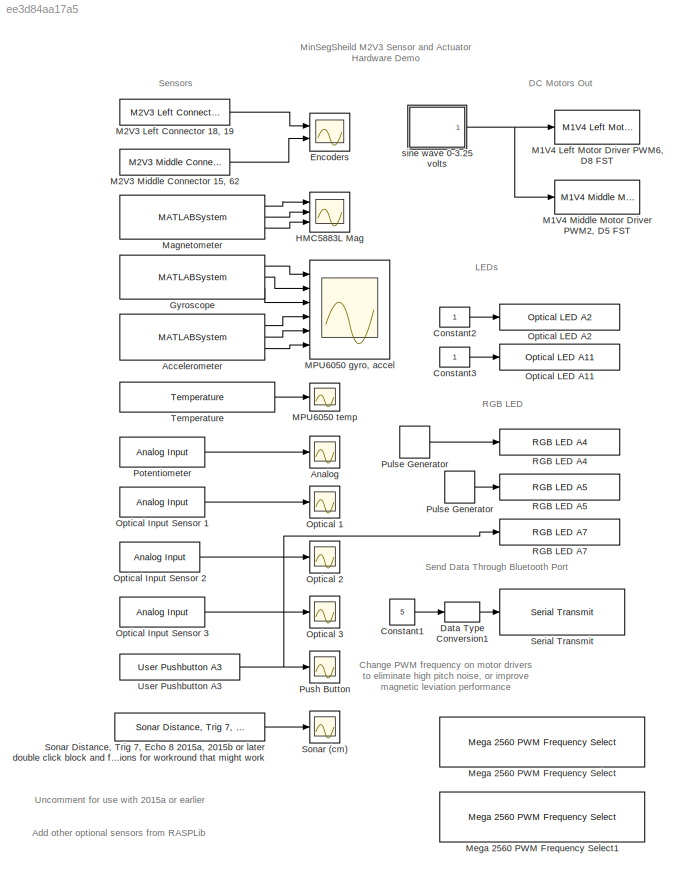
MODEL slx_ee3d84aa17a5
KIND model
CONFIG AbsTol = auto
CONFIG FixedStep = auto
CONFIG MaxStep = auto
CONFIG MinStep = auto
CONFIG RelTol = 1e-3
CONFIG SampleTimeConstraint = Unconstrained
CONFIG Solver = ode45
CONFIG SolverMode = Auto
CONFIG SolverName = ode45
CONFIG StartTime = 0.0
CONFIG StopTime = 10.0
BLOCK [MATLABSystem] Accelerometer
  MaskDisplay = disp('soMPU6050Accel');\nport_label('output',1,'xaccel');\nport_label('output',2,'yaccel');\nport_label('output',3,'zaccel');
  MaskType = soMPU6050Accel
  Ports = [0, 3]
  SimulateUsing = Code generation
  System = soMPU6050Accel
BLOCK [Scope] Analog
  DataFormat = StructureWithTime
  Floating = off
  NumInputPorts = 1
  Ports = [1]
  SampleTime = 0
  SaveName = ScopeData6
  TimeRange = 30
  YMax = 1000
  YMin = 0
BLOCK [Constant] Constant1
  SampleTime = -1
  Value = 5
BLOCK [Constant] Constant2
  SampleTime = -1
BLOCK [Constant] Constant3
  SampleTime = -1
BLOCK [DataTypeConversion] Data Type Conversion1
  OutDataTypeStr = uint8
  RndMeth = Floor
  SaturateOnIntegerOverflow = off
BLOCK [Scope] Encoders
  DataFormat = StructureWithTime
  Floating = off
  NumInputPorts = 2
  Ports = [2]
  SampleTime = 0
  TimeRange = 20
  YMax = 700~250
  YMin = -200~-25
BLOCK [MATLABSystem] Gyroscope
  DLPFmode = 0
  MaskDisplay = disp('soMPU6050Gyro');\nport_label('output',1,'xvel');\nport_label('output',2,'yvel');\nport_label('output',3,'zvel');
  MaskType = soMPU6050Gyro
  Ports = [0, 3]
  System = soMPU6050Gyro
BLOCK [Scope] HMC5883L Mag
  DataFormat = StructureWithTime
  Floating = off
  NumInputPorts = 3
  Ports = [3]
  SampleTime = 0
  SaveName = ScopeData7
  TimeRange = 10
  YMax = 175~30~200
  YMin = 100~-90~25
BLOCK [Reference] M1V4 Left Motor Driver PWM6, D8 FST  REF=MinSegLibrary_M2V3/M1V4 Left Motor Driver
PWM6, D8 FST
  Ports = [1]
  SourceBlock = MinSegLibrary_M2V3/M1V4 Left Motor Driver\nPWM6, D8 FST
  Vsupply = 3.25
BLOCK [Reference] M1V4 Middle Motor Driver PWM2, D5 FST  REF=MinSegLibrary_M2V3/M1V4 Middle Motor Driver
PWM2, D5 FST
  Ports = [1]
  SourceBlock = MinSegLibrary_M2V3/M1V4 Middle Motor Driver\nPWM2, D5 FST
  Vsupply = 3.25
BLOCK [Reference] M2V3 Left Connector 18, 19  REF=MinSegLibrary_M2V3/M2V3 Left Connector 18, 19
  Encoder = 1
  PinA = 19
  PinB = 18
  Ports = [0, 1]
  SourceBlock = MinSegLibrary_M2V3/M2V3 Left Connector 18, 19
  SourceType = Encoder_arduino
BLOCK [Reference] M2V3 Middle Connector 15, 62  REF=MinSegLibrary_M2V3/M2V3 Middle Connector 15, 62
  Encoder = 3
  PinA = 15
  PinB = 62
  Ports = [0, 1]
  SourceBlock = MinSegLibrary_M2V3/M2V3 Middle Connector 15, 62
  SourceType = Encoder_arduino
BLOCK [Scope] MPU6050 gyro, accel
  DataFormat = StructureWithTime
  Floating = off
  NumInputPorts = 6
  Ports = [6]
  SampleTime = 0
  SaveName = ScopeData1
  TimeRange = 10
  YMax = -210~75~-30~150~525~16350
  YMin = -280~-75~-120~-75~375~16000
BLOCK [Scope] MPU6050 temp
  DataFormat = StructureWithTime
  Floating = off
  NumInputPorts = 1
  Ports = [1]
  SampleTime = 0
  SaveName = ScopeData9
  TimeRange = 30
  YMax = -1750
  YMin = -3750
BLOCK [MATLABSystem] Magnetometer
  MaskDisplay = disp('soHMC5883L');\nport_label('output',1,'xmag');\nport_label('output',2,'ymag');\nport_label('output',3,'zmag');
  MaskType = soHMC5883L
  Ports = [0, 3]
  SimulateUsing = Code generation
  System = soHMC5883L
BLOCK [Reference] Mega 2560 PWM Frequency Select  REF=RASPlib/Mega 2560 PWM Frequency Select
  Commented = on
  Frequency = 32KHz
  Ports = []
  SourceBlock = RASPlib/Mega 2560 PWM Frequency Select
  Timer = 4 - pins 6, 7, 8
BLOCK [Reference] Mega 2560 PWM Frequency Select1  REF=RASPlib/Mega 2560 PWM Frequency Select
  Commented = on
  Frequency = 32KHz
  Ports = []
  SourceBlock = RASPlib/Mega 2560 PWM Frequency Select
  Timer = 3 - pins 2, 3, 5
BLOCK [Scope] Optical 1
  DataFormat = StructureWithTime
  Floating = off
  NumInputPorts = 1
  Ports = [1]
  SampleTime = 0
  SaveName = ScopeData4
  TimeRange = 30
  YMax = 1000
  YMin = 0
BLOCK [Scope] Optical 2
  DataFormat = StructureWithTime
  Floating = off
  NumInputPorts = 1
  Ports = [1]
  SampleTime = 0
  SaveName = ScopeData3
  TimeRange = 30
  YMax = 1000
  YMin = 0
BLOCK [Scope] Optical 3
  DataFormat = StructureWithTime
  Floating = off
  NumInputPorts = 1
  Ports = [1]
  SampleTime = 0
  SaveName = ScopeData5
  TimeRange = 30
  YMax = 1000
  YMin = 0
BLOCK [Reference] Optical Input Sensor 1  REF=arduinolib/Analog Input
  Ports = [0, 1]
  SourceBlock = arduinolib/Analog Input
  SourceType = Arduino Analog Input
  blockPlatform = arduino
  pinNumber = 10
  sampleTime = -1
BLOCK [Reference] Optical Input Sensor 2  REF=arduinolib/Analog Input
  Ports = [0, 1]
  SourceBlock = arduinolib/Analog Input
  SourceType = Arduino Analog Input
  blockPlatform = arduino
  pinNumber = 1
  sampleTime = -1
BLOCK [Reference] Optical Input Sensor 3  REF=arduinolib/Analog Input
  Ports = [0, 1]
  SourceBlock = arduinolib/Analog Input
  SourceType = Arduino Analog Input
  blockPlatform = arduino
  pinNumber = 9
  sampleTime = -1
BLOCK [Reference] Optical LED A11  REF=MinSegLibrary_M2V3/Optical LED A11
  Pin = 11
  Ports = [1]
  SourceBlock = MinSegLibrary_M2V3/Optical LED A11
  SourceType = soDAnalogWrite
BLOCK [Reference] Optical LED A2  REF=MinSegLibrary_M2V3/Optical LED A2
  Pin = 2
  Ports = [1]
  SourceBlock = MinSegLibrary_M2V3/Optical LED A2
  SourceType = soDAnalogWrite
BLOCK [Reference] Potentiometer  REF=arduinolib/Analog Input
  Ports = [0, 1]
  SourceBlock = arduinolib/Analog Input
  SourceType = Arduino Analog Input
  blockPlatform = arduino
  pinNumber = 0
  sampleTime = -1
BLOCK [DiscretePulseGenerator] Pulse Generator
  Period = 9
  Ports = [0, 1]
  PulseType = Time based
  PulseWidth = 50
BLOCK [DiscretePulseGenerator] Pulse Generator 
  Period = 6
  Ports = [0, 1]
  PulseType = Time based
  PulseWidth = 50
BLOCK [Scope] Push Button
  DataFormat = StructureWithTime
  Floating = off
  NumInputPorts = 1
  Ports = [1]
  SampleTime = 0
  SaveName = ScopeData8
  TimeRange = 30
  YMax = 1.05
  YMin = 0.95
BLOCK [Reference] RGB LED A4  REF=MinSegLibrary_M2V3/RGB LED A4
  Pin = 4
  Ports = [1]
  SourceBlock = MinSegLibrary_M2V3/RGB LED A4
  SourceType = soDAnalogWrite
BLOCK [Reference] RGB LED A5  REF=MinSegLibrary_M2V3/RGB LED A5
  Pin = 5
  Ports = [1]
  SourceBlock = MinSegLibrary_M2V3/RGB LED A5
  SourceType = soDAnalogWrite
BLOCK [Reference] RGB LED A7   REF=MinSegLibrary_M2V3/RGB LED A7

  Pin = 7
  Ports = [1]
  SourceBlock = MinSegLibrary_M2V3/RGB LED A7
  SourceType = soDAnalogWrite
BLOCK [Reference] Serial Transmit  REF=arduinolib/Serial Transmit
  Ports = [1]
  SourceBlock = arduinolib/Serial Transmit
  SourceType = Arduino Serial Transmit
  blockPlatform = arduino
  portNumber = 2
BLOCK [Scope] Sonar (cm)
  Commented = on
  DataFormat = StructureWithTime
  Floating = off
  NumInputPorts = 1
  Ports = [1]
  SampleTime = 0
  SaveName = ScopeData2
  TimeRange = 10
  YMax = 175
  YMin = 0
BLOCK [Reference] Sonar Distance, Trig 7, Echo 8 2015a, 2015b or later double click block and follow instructions for workround that might work  REF=MinSegLibrary_M2V3/Sonar Distance, Trig 7, Echo 8 2015a,
2015b or later double click block and follow
instructions for workround that might work
  Commented = on
  EchoPin = 11
  Ports = [0, 1]
  Sonar = 1
  SourceBlock = MinSegLibrary_M2V3/Sonar Distance, Trig 7, Echo 8 2015a,\n2015b or later double click block and follow\ninstructions for workround that might work
  SourceType = soHCSR04Sonar
  TrigPin = 12
BLOCK [Reference] Temperature  REF=RASPlib/Temperature
  Ports = [0, 1]
  SimulateUsing = Code generation
  SourceBlock = RASPlib/Temperature
  SourceType = soMPU6050Temp
BLOCK [Reference] User Pushbutton A3  REF=MinSegLibrary_M2V3/User Pushbutton A3
  Pin = 3
  Ports = [0, 1]
  SourceBlock = MinSegLibrary_M2V3/User Pushbutton A3
  SourceType = soDAnalogRead
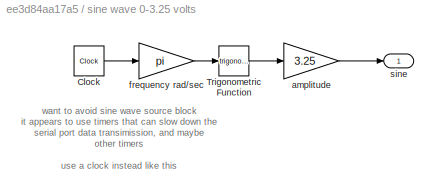
BLOCK [SubSystem] sine wave 0-3.25 volts
  Ports = [0, 1]
  RequestExecContextInheritance = off
BLOCK [Clock] sine wave 0-3.25 volts/Clock
BLOCK [Trigonometry] sine wave 0-3.25 volts/Trigonometric Function
  Ports = [1, 1]
BLOCK [Gain] sine wave 0-3.25 volts/amplitude
  Gain = 3.25
  OutDataTypeStr = Inherit: Inherit via internal rule
  ParamDataTypeStr = Inherit: Inherit via internal rule
  SaturateOnIntegerOverflow = off
BLOCK [Gain] sine wave 0-3.25 volts/frequency rad//sec
  Gain = pi
  OutDataTypeStr = Inherit: Inherit via internal rule
  ParamDataTypeStr = Inherit: Inherit via internal rule
  SaturateOnIntegerOverflow = off
BLOCK [Outport] sine wave 0-3.25 volts/sine
  IconDisplay = Port number
ANNOTATION (root): Add other optional sensors from RASPLib
ANNOTATION (root): Change PWM frequency on motor drivers to eliminate high pitch noise, or improve magnetic leviation performance
ANNOTATION (root): DC Motors Out
ANNOTATION (root): LEDs
ANNOTATION (root): MinSegSheild M2V3 Sensor and Actuator Hardware Demo
ANNOTATION (root): RGB LED
ANNOTATION (root): Send Data Through Bluetooth Port
ANNOTATION (root): Sensors
ANNOTATION (root): Uncomment for use with 2015a or earlier
ANNOTATION sine wave 0-3.25 volts: want to avoid sine wave source block it appears to use timers that can slow down the serial port data transimission, and maybe other timers use a clock instead like this
LINE Accelerometer:1 -> MPU6050 gyro, accel:4
LINE Accelerometer:2 -> MPU6050 gyro, accel:5
LINE Accelerometer:3 -> MPU6050 gyro, accel:6
LINE Constant1:1 -> Data Type Conversion1:1
LINE Constant2:1 -> Optical LED A2:1
LINE Constant3:1 -> Optical LED A11:1
LINE Data Type Conversion1:1 -> Serial Transmit:1
LINE Gyroscope:1 -> MPU6050 gyro, accel:1
LINE Gyroscope:2 -> MPU6050 gyro, accel:2
LINE Gyroscope:3 -> MPU6050 gyro, accel:3
LINE M2V3 Left Connector 18, 19:1 -> Encoders:1
LINE M2V3 Middle Connector 15, 62:1 -> Encoders:2
LINE Magnetometer:1 -> HMC5883L Mag:1
LINE Magnetometer:2 -> HMC5883L Mag:2
LINE Magnetometer:3 -> HMC5883L Mag:3
LINE Optical Input Sensor 1:1 -> Optical 1:1
LINE Optical Input Sensor 2:1 -> Optical 2:1
LINE Optical Input Sensor 3:1 -> Optical 3:1
LINE Potentiometer:1 -> Analog:1
LINE Pulse Generator :1 -> RGB LED A5:1
LINE Pulse Generator:1 -> RGB LED A4:1
LINE Sonar Distance, Trig 7, Echo 8 2015a, 2015b or later double click block and follow instructions for workround that might work:1 -> Sonar (cm):1
LINE Temperature:1 -> MPU6050 temp:1
NET User Pushbutton A3:1 -> Push Button:1, RGB LED A7 :1
LINE sine wave 0-3.25 volts/Clock:1 -> sine wave 0-3.25 volts/frequency rad//sec:1
LINE sine wave 0-3.25 volts/Trigonometric Function:1 -> sine wave 0-3.25 volts/amplitude:1
LINE sine wave 0-3.25 volts/amplitude:1 -> sine wave 0-3.25 volts/sine:1
LINE sine wave 0-3.25 volts/frequency rad//sec:1 -> sine wave 0-3.25 volts/Trigonometric Function:1
NET sine wave 0-3.25 volts:1 -> M1V4 Left Motor Driver PWM6, D8 FST:1, M1V4 Middle Motor Driver PWM2, D5 FST:1
note: NET lines group one-source signal fan-out (src -> all destinations, sorted); 1:1 wires keep LINE
